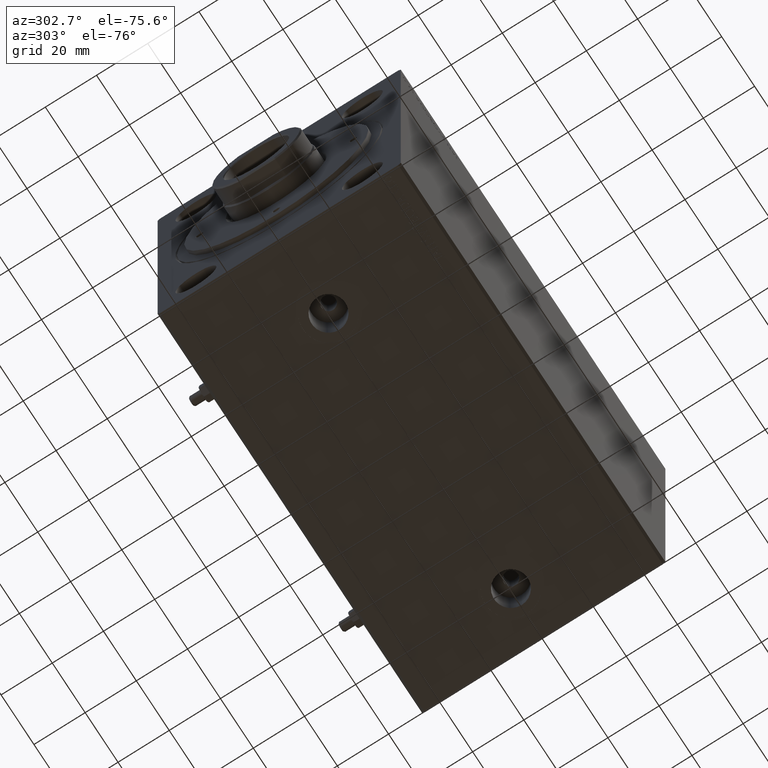
[diagram: clean part render]
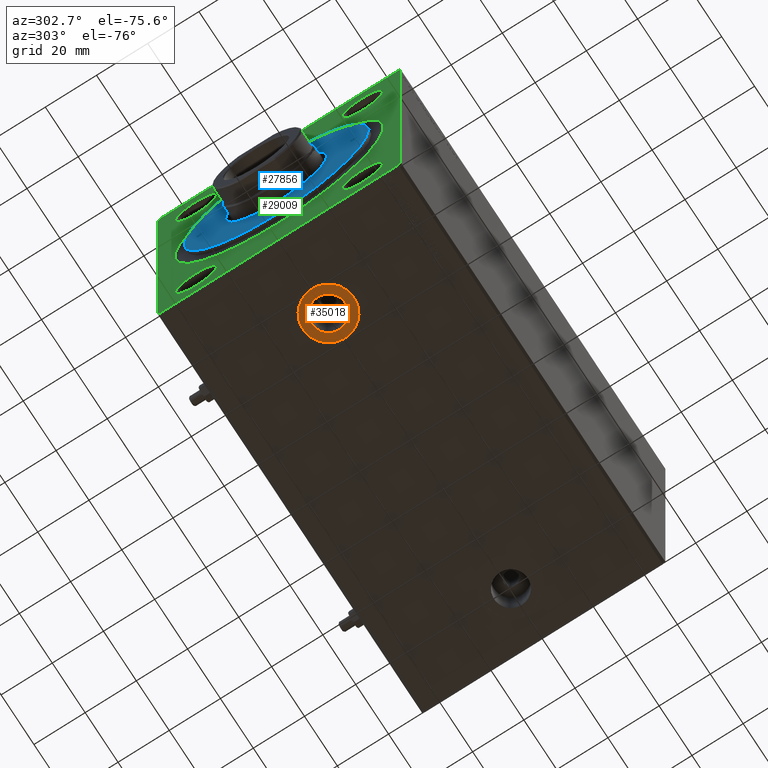
[diagram: same view with three faces highlighted in distinct colors, each labeled with its STEP entity id]
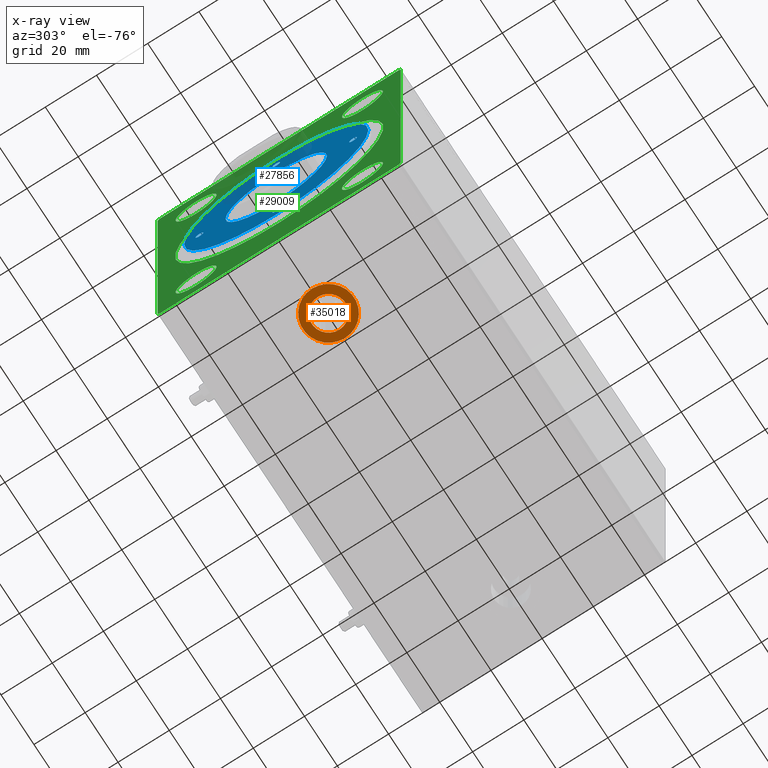
[diagram: x-ray of the same camera — body ghosted, the three highlighted faces saturated]
A machine part, auxiliary view with three faces highlighted in distinct colors.
The next image is the same camera in x-ray (body ghosted, the three faces saturated) — at least one of them is partly hidden behind the body in this view.
Their STEP definitions:

[orange] entity #35018 — the highlighted planar face has unit normal (0, 0, -1).
#243 = EDGE_LOOP ( 'NONE', ( #30362, #29939 ) ) ;
#1184 = EDGE_CURVE ( 'NONE', #19315, #40766, #17042, .T. ) ;
#1366 = DIRECTION ( 'NONE',  ( 0.000000000000000000, 0.000000000000000000, -1.000000000000000000 ) ) ;
#1729 = AXIS2_PLACEMENT_3D ( 'NONE', #23443, #19588, #22999 ) ;
#4216 = CARTESIAN_POINT ( 'NONE',  ( 23.41999999999999460, 3.191269477545414310E-15, -62.39999999999999858 ) ) ;
#4561 = CIRCLE ( 'NONE', #35835, 10.00000000000000178 ) ;
#4780 = CARTESIAN_POINT ( 'NONE',  ( 0.000000000000000000, 0.000000000000000000, -62.39999999999999858 ) ) ;
#8410 = DIRECTION ( 'NONE',  ( -1.000000000000000000, 0.000000000000000000, -0.000000000000000000 ) ) ;
#10978 = CARTESIAN_POINT ( 'NONE',  ( 30.00000000000000000, 3.191269477545414310E-15, -62.39999999999999858 ) ) ;
#11611 = FACE_OUTER_BOUND ( 'NONE', #243, .T. ) ;
#12755 = AXIS2_PLACEMENT_3D ( 'NONE', #29609, #16842, #45073 ) ;
#13468 = ORIENTED_EDGE ( 'NONE', *, *, #1184, .F. ) ;
#14179 = DIRECTION ( 'NONE',  ( 0.000000000000000000, 0.000000000000000000, -1.000000000000000000 ) ) ;
#16836 = DIRECTION ( 'NONE',  ( -1.000000000000000000, 0.000000000000000000, 0.000000000000000000 ) ) ;
#16842 = DIRECTION ( 'NONE',  ( 0.000000000000000000, 0.000000000000000000, -1.000000000000000000 ) ) ;
#17042 = CIRCLE ( 'NONE', #1729, 6.580000000000002736 ) ;
#18718 = AXIS2_PLACEMENT_3D ( 'NONE', #44404, #20497, #16836 ) ;
#19314 = CIRCLE ( 'NONE', #12755, 6.580000000000002736 ) ;
#19315 = VERTEX_POINT ( 'NONE', #43770 ) ;
#19588 = DIRECTION ( 'NONE',  ( 0.000000000000000000, 0.000000000000000000, -1.000000000000000000 ) ) ;
#20497 = DIRECTION ( 'NONE',  ( 0.000000000000000000, 0.000000000000000000, -1.000000000000000000 ) ) ;
#22999 = DIRECTION ( 'NONE',  ( -1.000000000000000000, 0.000000000000000000, 0.000000000000000000 ) ) ;
#23443 = CARTESIAN_POINT ( 'NONE',  ( 30.00000000000000000, 3.191269477545414310E-15, -62.39999999999999858 ) ) ;
#25130 = DIRECTION ( 'NONE',  ( -1.000000000000000000, 0.000000000000000000, 0.000000000000000000 ) ) ;
#26724 = CIRCLE ( 'NONE', #18718, 10.00000000000000178 ) ;
#29577 = EDGE_CURVE ( 'NONE', #43896, #44408, #4561, .T. ) ;
#29609 = CARTESIAN_POINT ( 'NONE',  ( 30.00000000000000000, 3.191269477545414310E-15, -62.39999999999999858 ) ) ;
#29735 = ORIENTED_EDGE ( 'NONE', *, *, #35183, .F. ) ;
#29939 = ORIENTED_EDGE ( 'NONE', *, *, #42974, .T. ) ;
#30362 = ORIENTED_EDGE ( 'NONE', *, *, #29577, .T. ) ;
#32399 = AXIS2_PLACEMENT_3D ( 'NONE', #4780, #1366, #8410 ) ;
#35018 = ADVANCED_FACE ( 'NONE', ( #39627, #11611 ), #35983, .T. ) ;
#35183 = EDGE_CURVE ( 'NONE', #40766, #19315, #19314, .T. ) ;
#35835 = AXIS2_PLACEMENT_3D ( 'NONE', #10978, #14179, #25130 ) ;
#35983 = PLANE ( 'NONE',  #32399 ) ;
#39575 = CARTESIAN_POINT ( 'NONE',  ( 19.99999999999999645, 3.191269477545414310E-15, -62.39999999999999858 ) ) ;
#39627 = FACE_BOUND ( 'NONE', #40523, .T. ) ;
#39865 = CARTESIAN_POINT ( 'NONE',  ( 40.00000000000000000, 4.415916276692767764E-15, -62.39999999999999858 ) ) ;
#40523 = EDGE_LOOP ( 'NONE', ( #29735, #13468 ) ) ;
#40766 = VERTEX_POINT ( 'NONE', #4216 ) ;
#42974 = EDGE_CURVE ( 'NONE', #44408, #43896, #26724, .T. ) ;
#43770 = CARTESIAN_POINT ( 'NONE',  ( 36.57999999999999829, 3.997087071384372957E-15, -62.39999999999999858 ) ) ;
#43896 = VERTEX_POINT ( 'NONE', #39575 ) ;
#44404 = CARTESIAN_POINT ( 'NONE',  ( 30.00000000000000000, 3.191269477545414310E-15, -62.39999999999999858 ) ) ;
#44408 = VERTEX_POINT ( 'NONE', #39865 ) ;
#45073 = DIRECTION ( 'NONE',  ( -1.000000000000000000, 0.000000000000000000, 0.000000000000000000 ) ) ;

[blue] entity #27856 — the highlighted planar face has unit normal (-1, 0, 0).
#464 = ORIENTED_EDGE ( 'NONE', *, *, #30655, .T. ) ;
#476 = DIRECTION ( 'NONE',  ( -0.000000000000000000, -0.000000000000000000, 1.000000000000000000 ) ) ;
#508 = DIRECTION ( 'NONE',  ( 1.000000000000000000, 0.000000000000000000, 0.000000000000000000 ) ) ;
#719 = EDGE_CURVE ( 'NONE', #40693, #11828, #1023, .T. ) ;
#1023 = CIRCLE ( 'NONE', #43948, 36.00000000000000000 ) ;
#1244 = CIRCLE ( 'NONE', #41248, 1.499999999999996891 ) ;
#1642 = AXIS2_PLACEMENT_3D ( 'NONE', #36486, #4840, #5277 ) ;
#2169 = DIRECTION ( 'NONE',  ( 1.000000000000000000, 0.000000000000000000, 0.000000000000000000 ) ) ;
#2742 = CIRCLE ( 'NONE', #29672, 1.499999999999996891 ) ;
#3296 = AXIS2_PLACEMENT_3D ( 'NONE', #30968, #41211, #12963 ) ;
#3419 = ORIENTED_EDGE ( 'NONE', *, *, #15812, .F. ) ;
#3822 = VERTEX_POINT ( 'NONE', #8742 ) ;
#4149 = DIRECTION ( 'NONE',  ( -0.000000000000000000, -0.000000000000000000, -1.000000000000000000 ) ) ;
#4169 = VERTEX_POINT ( 'NONE', #33473 ) ;
#4195 = EDGE_CURVE ( 'NONE', #17726, #4207, #34584, .T. ) ;
#4207 = VERTEX_POINT ( 'NONE', #5888 ) ;
#4340 = ORIENTED_EDGE ( 'NONE', *, *, #21301, .F. ) ;
#4363 = CIRCLE ( 'NONE', #32745, 1.499999999999997780 ) ;
#4489 = EDGE_LOOP ( 'NONE', ( #35942, #464 ) ) ;
#4618 = EDGE_LOOP ( 'NONE', ( #35932, #17393 ) ) ;
#4840 = DIRECTION ( 'NONE',  ( -0.000000000000000000, -0.000000000000000000, 1.000000000000000000 ) ) ;
#5277 = DIRECTION ( 'NONE',  ( 1.000000000000000000, 0.000000000000000000, 0.000000000000000000 ) ) ;
#5888 = CARTESIAN_POINT ( 'NONE',  ( -28.50000000000000000, 0.000000000000000000, 13.99999999999999822 ) ) ;
#7018 = CIRCLE ( 'NONE', #26688, 1.499999999999994449 ) ;
#7320 = DIRECTION ( 'NONE',  ( 1.000000000000000000, 0.000000000000000000, -0.000000000000000000 ) ) ;
#7393 = CARTESIAN_POINT ( 'NONE',  ( 0.000000000000000000, 30.00000000000000000, 13.99999999999999822 ) ) ;
#7538 = DIRECTION ( 'NONE',  ( 0.000000000000000000, 0.000000000000000000, 1.000000000000000000 ) ) ;
#7633 = EDGE_LOOP ( 'NONE', ( #4340, #3419 ) ) ;
#8326 = CARTESIAN_POINT ( 'NONE',  ( 28.50000000000000355, 1.836970198721022785E-16, 13.99999999999999822 ) ) ;
#8742 = CARTESIAN_POINT ( 'NONE',  ( -1.499999999999996891, -30.00000000000000000, 13.99999999999999822 ) ) ;
#8942 = DIRECTION ( 'NONE',  ( -0.000000000000000000, -0.000000000000000000, -1.000000000000000000 ) ) ;
#10314 = VERTEX_POINT ( 'NONE', #31206 ) ;
#11160 = CIRCLE ( 'NONE', #22815, 36.00000000000000000 ) ;
#11560 = CARTESIAN_POINT ( 'NONE',  ( 0.000000000000000000, 30.00000000000000000, 13.99999999999999822 ) ) ;
#11565 = EDGE_CURVE ( 'NONE', #4207, #17726, #4363, .T. ) ;
#11776 = DIRECTION ( 'NONE',  ( 1.000000000000000000, 0.000000000000000000, 0.000000000000000000 ) ) ;
#11828 = VERTEX_POINT ( 'NONE', #21174 ) ;
#12963 = DIRECTION ( 'NONE',  ( 1.000000000000000000, 0.000000000000000000, 0.000000000000000000 ) ) ;
#13935 = FACE_OUTER_BOUND ( 'NONE', #4489, .T. ) ;
#13949 = CARTESIAN_POINT ( 'NONE',  ( 0.000000000000000000, -30.00000000000000000, 13.99999999999999822 ) ) ;
#14177 = DIRECTION ( 'NONE',  ( -0.000000000000000000, -0.000000000000000000, 1.000000000000000000 ) ) ;
#14242 = ORIENTED_EDGE ( 'NONE', *, *, #26611, .F. ) ;
#14633 = CARTESIAN_POINT ( 'NONE',  ( 19.79999999999997229, 0.000000000000000000, 13.99999999999999822 ) ) ;
#15282 = CARTESIAN_POINT ( 'NONE',  ( -1.499999999999996891, 30.00000000000000000, 13.99999999999999822 ) ) ;
#15812 = EDGE_CURVE ( 'NONE', #3822, #24687, #40213, .T. ) ;
#16004 = EDGE_CURVE ( 'NONE', #17060, #4169, #41681, .T. ) ;
#16689 = EDGE_CURVE ( 'NONE', #21499, #10314, #18442, .T. ) ;
#16783 = CARTESIAN_POINT ( 'NONE',  ( 1.499999999999996891, -30.00000000000000000, 13.99999999999999822 ) ) ;
#17060 = VERTEX_POINT ( 'NONE', #15282 ) ;
#17373 = PLANE ( 'NONE',  #25645 ) ;
#17393 = ORIENTED_EDGE ( 'NONE', *, *, #16004, .F. ) ;
#17595 = CARTESIAN_POINT ( 'NONE',  ( 0.000000000000000000, 0.000000000000000000, 13.99999999999999822 ) ) ;
#17726 = VERTEX_POINT ( 'NONE', #36344 ) ;
#18442 = CIRCLE ( 'NONE', #27896, 19.79999999999997229 ) ;
#18596 = DIRECTION ( 'NONE',  ( -0.000000000000000000, -0.000000000000000000, 1.000000000000000000 ) ) ;
#19037 = CARTESIAN_POINT ( 'NONE',  ( 30.00000000000000000, 0.000000000000000000, 13.99999999999999822 ) ) ;
#19496 = ORIENTED_EDGE ( 'NONE', *, *, #42129, .F. ) ;
#20136 = CIRCLE ( 'NONE', #33212, 19.79999999999997229 ) ;
#20958 = EDGE_LOOP ( 'NONE', ( #19496, #14242 ) ) ;
#21174 = CARTESIAN_POINT ( 'NONE',  ( 36.00000000000000000, 4.408728476930470856E-15, 13.99999999999999822 ) ) ;
#21301 = EDGE_CURVE ( 'NONE', #24687, #3822, #2742, .T. ) ;
#21499 = VERTEX_POINT ( 'NONE', #14633 ) ;
#22099 = DIRECTION ( 'NONE',  ( -0.000000000000000000, -0.000000000000000000, 1.000000000000000000 ) ) ;
#22214 = ORIENTED_EDGE ( 'NONE', *, *, #4195, .F. ) ;
#22316 = DIRECTION ( 'NONE',  ( 1.000000000000000000, 0.000000000000000000, 0.000000000000000000 ) ) ;
#22651 = DIRECTION ( 'NONE',  ( 0.000000000000000000, 0.000000000000000000, 1.000000000000000000 ) ) ;
#22815 = AXIS2_PLACEMENT_3D ( 'NONE', #44540, #34067, #2169 ) ;
#24210 = FACE_BOUND ( 'NONE', #7633, .T. ) ;
#24289 = DIRECTION ( 'NONE',  ( -0.000000000000000000, -0.000000000000000000, 1.000000000000000000 ) ) ;
#24638 = CARTESIAN_POINT ( 'NONE',  ( -30.00000000000000000, 0.000000000000000000, 13.99999999999999822 ) ) ;
#24687 = VERTEX_POINT ( 'NONE', #16783 ) ;
#24880 = FACE_BOUND ( 'NONE', #26162, .T. ) ;
#25645 = AXIS2_PLACEMENT_3D ( 'NONE', #17595, #7538, #7320 ) ;
#25831 = DIRECTION ( 'NONE',  ( 1.000000000000000000, 0.000000000000000000, 0.000000000000000000 ) ) ;
#26162 = EDGE_LOOP ( 'NONE', ( #42681, #30761 ) ) ;
#26611 = EDGE_CURVE ( 'NONE', #41450, #41428, #34890, .T. ) ;
#26688 = AXIS2_PLACEMENT_3D ( 'NONE', #39611, #22099, #22316 ) ;
#27856 = ADVANCED_FACE ( 'NONE', ( #31056, #44940, #38760, #24210, #24880, #13935 ), #17373, .T. ) ;
#27896 = AXIS2_PLACEMENT_3D ( 'NONE', #29464, #8942, #25831 ) ;
#29464 = CARTESIAN_POINT ( 'NONE',  ( 0.000000000000000000, 0.000000000000000000, 13.99999999999999822 ) ) ;
#29530 = CARTESIAN_POINT ( 'NONE',  ( 31.49999999999999289, 0.000000000000000000, 13.99999999999999822 ) ) ;
#29672 = AXIS2_PLACEMENT_3D ( 'NONE', #13949, #14177, #508 ) ;
#30655 = EDGE_CURVE ( 'NONE', #11828, #40693, #11160, .T. ) ;
#30761 = ORIENTED_EDGE ( 'NONE', *, *, #41861, .T. ) ;
#30968 = CARTESIAN_POINT ( 'NONE',  ( -30.00000000000000000, 0.000000000000000000, 13.99999999999999822 ) ) ;
#31056 = FACE_BOUND ( 'NONE', #33535, .T. ) ;
#31206 = CARTESIAN_POINT ( 'NONE',  ( -19.79999999999997229, 2.424800662311756249E-15, 13.99999999999999822 ) ) ;
#31351 = DIRECTION ( 'NONE',  ( 1.000000000000000000, 0.000000000000000000, 0.000000000000000000 ) ) ;
#31835 = CARTESIAN_POINT ( 'NONE',  ( 0.000000000000000000, 0.000000000000000000, 13.99999999999999822 ) ) ;
#32745 = AXIS2_PLACEMENT_3D ( 'NONE', #24638, #476, #41714 ) ;
#33212 = AXIS2_PLACEMENT_3D ( 'NONE', #35354, #4149, #41524 ) ;
#33473 = CARTESIAN_POINT ( 'NONE',  ( 1.499999999999996891, 30.00000000000000000, 13.99999999999999822 ) ) ;
#33535 = EDGE_LOOP ( 'NONE', ( #44968, #22214 ) ) ;
#34067 = DIRECTION ( 'NONE',  ( 0.000000000000000000, 0.000000000000000000, 1.000000000000000000 ) ) ;
#34584 = CIRCLE ( 'NONE', #3296, 1.499999999999997780 ) ;
#34890 = CIRCLE ( 'NONE', #40722, 1.499999999999994449 ) ;
#35354 = CARTESIAN_POINT ( 'NONE',  ( 0.000000000000000000, 0.000000000000000000, 13.99999999999999822 ) ) ;
#35932 = ORIENTED_EDGE ( 'NONE', *, *, #43421, .F. ) ;
#35942 = ORIENTED_EDGE ( 'NONE', *, *, #719, .T. ) ;
#36344 = CARTESIAN_POINT ( 'NONE',  ( -31.50000000000000000, 1.836970198721022785E-16, 13.99999999999999822 ) ) ;
#36486 = CARTESIAN_POINT ( 'NONE',  ( 0.000000000000000000, -30.00000000000000000, 13.99999999999999822 ) ) ;
#37505 = CARTESIAN_POINT ( 'NONE',  ( -36.00000000000000000, 0.000000000000000000, 13.99999999999999822 ) ) ;
#38681 = DIRECTION ( 'NONE',  ( -0.000000000000000000, -0.000000000000000000, 1.000000000000000000 ) ) ;
#38751 = AXIS2_PLACEMENT_3D ( 'NONE', #11560, #38681, #11776 ) ;
#38760 = FACE_BOUND ( 'NONE', #20958, .T. ) ;
#39309 = DIRECTION ( 'NONE',  ( 1.000000000000000000, 0.000000000000000000, 0.000000000000000000 ) ) ;
#39611 = CARTESIAN_POINT ( 'NONE',  ( 30.00000000000000000, 0.000000000000000000, 13.99999999999999822 ) ) ;
#39955 = DIRECTION ( 'NONE',  ( 1.000000000000000000, 0.000000000000000000, 0.000000000000000000 ) ) ;
#40213 = CIRCLE ( 'NONE', #1642, 1.499999999999996891 ) ;
#40693 = VERTEX_POINT ( 'NONE', #37505 ) ;
#40722 = AXIS2_PLACEMENT_3D ( 'NONE', #19037, #18596, #39309 ) ;
#41211 = DIRECTION ( 'NONE',  ( -0.000000000000000000, -0.000000000000000000, 1.000000000000000000 ) ) ;
#41248 = AXIS2_PLACEMENT_3D ( 'NONE', #7393, #24289, #31351 ) ;
#41428 = VERTEX_POINT ( 'NONE', #29530 ) ;
#41450 = VERTEX_POINT ( 'NONE', #8326 ) ;
#41524 = DIRECTION ( 'NONE',  ( 1.000000000000000000, 0.000000000000000000, 0.000000000000000000 ) ) ;
#41681 = CIRCLE ( 'NONE', #38751, 1.499999999999996891 ) ;
#41714 = DIRECTION ( 'NONE',  ( 1.000000000000000000, 0.000000000000000000, 0.000000000000000000 ) ) ;
#41861 = EDGE_CURVE ( 'NONE', #10314, #21499, #20136, .T. ) ;
#42129 = EDGE_CURVE ( 'NONE', #41428, #41450, #7018, .T. ) ;
#42681 = ORIENTED_EDGE ( 'NONE', *, *, #16689, .T. ) ;
#43421 = EDGE_CURVE ( 'NONE', #4169, #17060, #1244, .T. ) ;
#43948 = AXIS2_PLACEMENT_3D ( 'NONE', #31835, #22651, #39955 ) ;
#44540 = CARTESIAN_POINT ( 'NONE',  ( 0.000000000000000000, 0.000000000000000000, 13.99999999999999822 ) ) ;
#44940 = FACE_BOUND ( 'NONE', #4618, .T. ) ;
#44968 = ORIENTED_EDGE ( 'NONE', *, *, #11565, .F. ) ;

[green] entity #29009 — the highlighted planar face has unit normal (1, 0, 0).
#26 = EDGE_CURVE ( 'NONE', #34057, #42063, #42561, .T. ) ;
#166 = CIRCLE ( 'NONE', #26395, 40.70000000000003837 ) ;
#219 = FACE_BOUND ( 'NONE', #4784, .T. ) ;
#623 = CIRCLE ( 'NONE', #15907, 8.000000000000000000 ) ;
#839 = CARTESIAN_POINT ( 'NONE',  ( 4.898587196589409870E-16, 32.50000000000000000, -39.50000000000000711 ) ) ;
#1777 = VERTEX_POINT ( 'NONE', #42715 ) ;
#2209 = CARTESIAN_POINT ( 'NONE',  ( 4.898587196589409870E-16, 32.50000000000000000, 47.50000000000000000 ) ) ;
#3694 = CARTESIAN_POINT ( 'NONE',  ( 4.898587196589409870E-16, 32.50000000000000000, -47.50000000000000000 ) ) ;
#4247 = DIRECTION ( 'NONE',  ( 0.000000000000000000, -1.000000000000000000, -7.461176240760460157E-17 ) ) ;
#4403 = ORIENTED_EDGE ( 'NONE', *, *, #29481, .F. ) ;
#4777 = ORIENTED_EDGE ( 'NONE', *, *, #27728, .T. ) ;
#4784 = EDGE_LOOP ( 'NONE', ( #19265, #27011 ) ) ;
#5104 = CARTESIAN_POINT ( 'NONE',  ( 0.000000000000000000, 0.000000000000000000, 0.000000000000000000 ) ) ;
#5212 = DIRECTION ( 'NONE',  ( -1.000000000000000000, -0.000000000000000000, -0.000000000000000000 ) ) ;
#5384 = DIRECTION ( 'NONE',  ( -1.000000000000000000, -0.000000000000000000, -0.000000000000000000 ) ) ;
#5414 = DIRECTION ( 'NONE',  ( 0.000000000000000000, 1.000000000000000000, 1.492235248152092278E-16 ) ) ;
#5631 = CARTESIAN_POINT ( 'NONE',  ( 0.000000000000000000, -46.50000000000000000, -62.50000000000001421 ) ) ;
#6027 = CIRCLE ( 'NONE', #31509, 40.70000000000003837 ) ;
#6146 = CARTESIAN_POINT ( 'NONE',  ( 0.000000000000000000, -47.49999999999999289, -61.50000000000001421 ) ) ;
#6345 = VECTOR ( 'NONE', #16417, 1000.000000000000114 ) ;
#7974 = VERTEX_POINT ( 'NONE', #44386 ) ;
#8581 = DIRECTION ( 'NONE',  ( -1.000000000000000000, -0.000000000000000000, -0.000000000000000000 ) ) ;
#8598 = VERTEX_POINT ( 'NONE', #30014 ) ;
#8696 = EDGE_CURVE ( 'NONE', #7974, #15940, #18843, .T. ) ;
#8703 = EDGE_CURVE ( 'NONE', #42063, #34057, #623, .T. ) ;
#8945 = AXIS2_PLACEMENT_3D ( 'NONE', #21429, #17552, #31440 ) ;
#9107 = CIRCLE ( 'NONE', #11997, 7.999999999999992895 ) ;
#9143 = ORIENTED_EDGE ( 'NONE', *, *, #8703, .F. ) ;
#9407 = LINE ( 'NONE', #9634, #30303 ) ;
#9486 = DIRECTION ( 'NONE',  ( 0.000000000000000000, 0.000000000000000000, 1.000000000000000000 ) ) ;
#9634 = CARTESIAN_POINT ( 'NONE',  ( 0.000000000000000000, -47.50000000000001421, 61.49999999999997868 ) ) ;
#9962 = LINE ( 'NONE', #23879, #35904 ) ;
#10145 = EDGE_LOOP ( 'NONE', ( #9143, #35415 ) ) ;
#10458 = ORIENTED_EDGE ( 'NONE', *, *, #20130, .F. ) ;
#10696 = FACE_OUTER_BOUND ( 'NONE', #14426, .T. ) ;
#10915 = FACE_BOUND ( 'NONE', #36133, .T. ) ;
#11997 = AXIS2_PLACEMENT_3D ( 'NONE', #36421, #5212, #33015 ) ;
#12005 = CARTESIAN_POINT ( 'NONE',  ( 4.898587196589409870E-16, -32.50000000000000000, -47.50000000000000711 ) ) ;
#12199 = CARTESIAN_POINT ( 'NONE',  ( 4.898587196589409870E-16, -32.50000000000000000, 39.50000000000000711 ) ) ;
#12278 = EDGE_LOOP ( 'NONE', ( #29506, #4403 ) ) ;
#12335 = ORIENTED_EDGE ( 'NONE', *, *, #35179, .F. ) ;
#12386 = VERTEX_POINT ( 'NONE', #44024 ) ;
#12591 = CIRCLE ( 'NONE', #18436, 7.999999999999992895 ) ;
#12802 = CARTESIAN_POINT ( 'NONE',  ( 4.898587196589409870E-16, 32.50000000000000000, 39.50000000000000711 ) ) ;
#13511 = DIRECTION ( 'NONE',  ( -1.000000000000000000, -0.000000000000000000, -0.000000000000000000 ) ) ;
#13513 = DIRECTION ( 'NONE',  ( -1.000000000000000000, -0.000000000000000000, -0.000000000000000000 ) ) ;
#13715 = DIRECTION ( 'NONE',  ( 0.000000000000000000, -1.128275431529630729E-16, 1.000000000000000000 ) ) ;
#14186 = CIRCLE ( 'NONE', #35284, 7.999999999999992895 ) ;
#14426 = EDGE_LOOP ( 'NONE', ( #38926, #30848, #44655, #16383, #40185, #24859, #40030, #10458 ) ) ;
#14514 = EDGE_CURVE ( 'NONE', #12386, #28956, #21379, .T. ) ;
#15647 = EDGE_CURVE ( 'NONE', #8598, #26725, #6027, .T. ) ;
#15907 = AXIS2_PLACEMENT_3D ( 'NONE', #19774, #34324, #9486 ) ;
#15940 = VERTEX_POINT ( 'NONE', #12802 ) ;
#16383 = ORIENTED_EDGE ( 'NONE', *, *, #17587, .F. ) ;
#16417 = DIRECTION ( 'NONE',  ( 0.000000000000000000, 0.7071067811865451302, -0.7071067811865500152 ) ) ;
#16928 = DIRECTION ( 'NONE',  ( 1.000000000000000000, 0.000000000000000000, 0.000000000000000000 ) ) ;
#17552 = DIRECTION ( 'NONE',  ( 1.000000000000000000, 0.000000000000000000, 0.000000000000000000 ) ) ;
#17587 = EDGE_CURVE ( 'NONE', #23510, #34395, #9962, .T. ) ;
#17608 = DIRECTION ( 'NONE',  ( 0.000000000000000000, 0.000000000000000000, 1.000000000000000000 ) ) ;
#17709 = LINE ( 'NONE', #35452, #20201 ) ;
#18007 = CARTESIAN_POINT ( 'NONE',  ( 0.000000000000000000, 46.50000000000000000, 62.49999999999998579 ) ) ;
#18047 = EDGE_CURVE ( 'NONE', #41490, #20911, #38102, .T. ) ;
#18436 = AXIS2_PLACEMENT_3D ( 'NONE', #20599, #13513, #37436 ) ;
#18729 = LINE ( 'NONE', #43539, #34429 ) ;
#18843 = CIRCLE ( 'NONE', #41382, 7.999999999999992895 ) ;
#19257 = DIRECTION ( 'NONE',  ( 0.000000000000000000, 0.000000000000000000, -1.000000000000000000 ) ) ;
#19265 = ORIENTED_EDGE ( 'NONE', *, *, #35655, .F. ) ;
#19774 = CARTESIAN_POINT ( 'NONE',  ( 4.898587196589409870E-16, -32.50000000000000000, -47.50000000000000711 ) ) ;
#19786 = EDGE_CURVE ( 'NONE', #29598, #23510, #30325, .T. ) ;
#20130 = EDGE_CURVE ( 'NONE', #28956, #33390, #17709, .T. ) ;
#20201 = VECTOR ( 'NONE', #4247, 1000.000000000000000 ) ;
#20363 = CARTESIAN_POINT ( 'NONE',  ( 0.000000000000000000, 0.000000000000000000, 0.000000000000000000 ) ) ;
#20545 = CARTESIAN_POINT ( 'NONE',  ( 4.898587196589409870E-16, -32.50000000000000000, -39.50000000000000711 ) ) ;
#20599 = CARTESIAN_POINT ( 'NONE',  ( 4.898587196589409870E-16, 32.50000000000000000, 47.50000000000000000 ) ) ;
#20911 = VERTEX_POINT ( 'NONE', #12199 ) ;
#21379 = LINE ( 'NONE', #32059, #28556 ) ;
#21395 = EDGE_CURVE ( 'NONE', #39752, #37679, #43475, .T. ) ;
#21429 = CARTESIAN_POINT ( 'NONE',  ( 0.000000000000000000, 0.000000000000000000, 0.000000000000000000 ) ) ;
#21926 = DIRECTION ( 'NONE',  ( 0.000000000000000000, 0.7071067811865574537, 0.7071067811865376918 ) ) ;
#22497 = DIRECTION ( 'NONE',  ( 0.000000000000000000, 0.000000000000000000, 1.000000000000000000 ) ) ;
#23179 = CARTESIAN_POINT ( 'NONE',  ( 4.898587196589409870E-16, 32.50000000000000000, -47.50000000000000000 ) ) ;
#23510 = VERTEX_POINT ( 'NONE', #5631 ) ;
#23609 = CARTESIAN_POINT ( 'NONE',  ( 4.898587196589409870E-16, -32.50000000000000000, 55.49999999999999289 ) ) ;
#23723 = DIRECTION ( 'NONE',  ( 0.000000000000000000, 0.000000000000000000, 1.000000000000000000 ) ) ;
#23879 = CARTESIAN_POINT ( 'NONE',  ( 0.000000000000000000, -46.50000000000000000, -62.50000000000001421 ) ) ;
#24167 = FACE_BOUND ( 'NONE', #27761, .T. ) ;
#24859 = ORIENTED_EDGE ( 'NONE', *, *, #41791, .F. ) ;
#25172 = VECTOR ( 'NONE', #13715, 1000.000000000000000 ) ;
#25706 = CARTESIAN_POINT ( 'NONE',  ( 0.000000000000000000, 47.50000000000001421, -61.50000000000001421 ) ) ;
#26395 = AXIS2_PLACEMENT_3D ( 'NONE', #20363, #16928, #30829 ) ;
#26685 = DIRECTION ( 'NONE',  ( -1.000000000000000000, -0.000000000000000000, -0.000000000000000000 ) ) ;
#26725 = VERTEX_POINT ( 'NONE', #26776 ) ;
#26776 = CARTESIAN_POINT ( 'NONE',  ( 0.000000000000000000, 4.984312472529732047E-15, -40.70000000000003837 ) ) ;
#26823 = DIRECTION ( 'NONE',  ( -1.000000000000000000, -0.000000000000000000, -0.000000000000000000 ) ) ;
#27011 = ORIENTED_EDGE ( 'NONE', *, *, #21395, .F. ) ;
#27042 = DIRECTION ( 'NONE',  ( 0.000000000000000000, 0.000000000000000000, 1.000000000000000000 ) ) ;
#27573 = CARTESIAN_POINT ( 'NONE',  ( 4.898587196589409870E-16, -32.50000000000000000, 47.50000000000000000 ) ) ;
#27728 = EDGE_CURVE ( 'NONE', #26725, #8598, #166, .T. ) ;
#27761 = EDGE_LOOP ( 'NONE', ( #29610, #12335 ) ) ;
#27796 = CARTESIAN_POINT ( 'NONE',  ( 0.000000000000000000, -46.50000000000001421, 62.49999999999997868 ) ) ;
#28556 = VECTOR ( 'NONE', #31838, 1000.000000000000114 ) ;
#28760 = EDGE_CURVE ( 'NONE', #34395, #44696, #18729, .T. ) ;
#28763 = CARTESIAN_POINT ( 'NONE',  ( 0.000000000000000000, -47.49999999999999289, -61.50000000000001421 ) ) ;
#28956 = VERTEX_POINT ( 'NONE', #18007 ) ;
#29009 = ADVANCED_FACE ( 'NONE', ( #35063, #42139, #219, #24167, #10915, #10696 ), #38714, .F. ) ;
#29024 = EDGE_CURVE ( 'NONE', #33390, #1777, #37826, .T. ) ;
#29481 = EDGE_CURVE ( 'NONE', #15940, #7974, #12591, .T. ) ;
#29506 = ORIENTED_EDGE ( 'NONE', *, *, #8696, .F. ) ;
#29598 = VERTEX_POINT ( 'NONE', #28763 ) ;
#29610 = ORIENTED_EDGE ( 'NONE', *, *, #18047, .F. ) ;
#30014 = CARTESIAN_POINT ( 'NONE',  ( 0.000000000000000000, 0.000000000000000000, 40.70000000000003837 ) ) ;
#30235 = CARTESIAN_POINT ( 'NONE',  ( 0.000000000000000000, 46.50000000000000000, -62.50000000000000000 ) ) ;
#30303 = VECTOR ( 'NONE', #41305, 1000.000000000000000 ) ;
#30325 = LINE ( 'NONE', #6146, #6345 ) ;
#30829 = DIRECTION ( 'NONE',  ( 0.000000000000000000, 0.000000000000000000, -1.000000000000000000 ) ) ;
#30848 = ORIENTED_EDGE ( 'NONE', *, *, #36225, .F. ) ;
#31053 = LINE ( 'NONE', #38989, #25172 ) ;
#31122 = CARTESIAN_POINT ( 'NONE',  ( 4.898587196589409870E-16, 32.50000000000000000, -55.49999999999999289 ) ) ;
#31440 = DIRECTION ( 'NONE',  ( 0.000000000000000000, 0.000000000000000000, -1.000000000000000000 ) ) ;
#31509 = AXIS2_PLACEMENT_3D ( 'NONE', #5104, #36768, #19257 ) ;
#31838 = DIRECTION ( 'NONE',  ( 0.000000000000000000, -0.7071067811865474617, 0.7071067811865474617 ) ) ;
#32059 = CARTESIAN_POINT ( 'NONE',  ( 0.000000000000000000, 47.50000000000000000, 61.49999999999998579 ) ) ;
#33015 = DIRECTION ( 'NONE',  ( 0.000000000000000000, 0.000000000000000000, 1.000000000000000000 ) ) ;
#33390 = VERTEX_POINT ( 'NONE', #41142 ) ;
#33751 = AXIS2_PLACEMENT_3D ( 'NONE', #27573, #26685, #23723 ) ;
#34057 = VERTEX_POINT ( 'NONE', #41933 ) ;
#34324 = DIRECTION ( 'NONE',  ( -1.000000000000000000, -0.000000000000000000, -0.000000000000000000 ) ) ;
#34395 = VERTEX_POINT ( 'NONE', #30235 ) ;
#34412 = DIRECTION ( 'NONE',  ( 0.000000000000000000, -0.7071067811865474617, -0.7071067811865474617 ) ) ;
#34429 = VECTOR ( 'NONE', #21926, 999.9999999999998863 ) ;
#34558 = AXIS2_PLACEMENT_3D ( 'NONE', #12005, #8581, #40255 ) ;
#34761 = AXIS2_PLACEMENT_3D ( 'NONE', #3694, #13511, #17608 ) ;
#35063 = FACE_BOUND ( 'NONE', #12278, .T. ) ;
#35179 = EDGE_CURVE ( 'NONE', #20911, #41490, #9107, .T. ) ;
#35284 = AXIS2_PLACEMENT_3D ( 'NONE', #23179, #5384, #22497 ) ;
#35415 = ORIENTED_EDGE ( 'NONE', *, *, #26, .F. ) ;
#35452 = CARTESIAN_POINT ( 'NONE',  ( 0.000000000000000000, 46.50000000000000000, 62.49999999999998579 ) ) ;
#35655 = EDGE_CURVE ( 'NONE', #37679, #39752, #14186, .T. ) ;
#35904 = VECTOR ( 'NONE', #5414, 1000.000000000000000 ) ;
#36133 = EDGE_LOOP ( 'NONE', ( #37001, #4777 ) ) ;
#36225 = EDGE_CURVE ( 'NONE', #44696, #12386, #31053, .T. ) ;
#36421 = CARTESIAN_POINT ( 'NONE',  ( 4.898587196589409870E-16, -32.50000000000000000, 47.50000000000000000 ) ) ;
#36768 = DIRECTION ( 'NONE',  ( 1.000000000000000000, 0.000000000000000000, 0.000000000000000000 ) ) ;
#37001 = ORIENTED_EDGE ( 'NONE', *, *, #15647, .T. ) ;
#37307 = VECTOR ( 'NONE', #34412, 1000.000000000000114 ) ;
#37436 = DIRECTION ( 'NONE',  ( 0.000000000000000000, 0.000000000000000000, 1.000000000000000000 ) ) ;
#37679 = VERTEX_POINT ( 'NONE', #839 ) ;
#37826 = LINE ( 'NONE', #27796, #37307 ) ;
#38102 = CIRCLE ( 'NONE', #33751, 7.999999999999992895 ) ;
#38714 = PLANE ( 'NONE',  #8945 ) ;
#38926 = ORIENTED_EDGE ( 'NONE', *, *, #14514, .F. ) ;
#38989 = CARTESIAN_POINT ( 'NONE',  ( 0.000000000000000000, 47.50000000000001421, -61.50000000000001421 ) ) ;
#39752 = VERTEX_POINT ( 'NONE', #31122 ) ;
#40030 = ORIENTED_EDGE ( 'NONE', *, *, #29024, .F. ) ;
#40185 = ORIENTED_EDGE ( 'NONE', *, *, #19786, .F. ) ;
#40255 = DIRECTION ( 'NONE',  ( 0.000000000000000000, 0.000000000000000000, 1.000000000000000000 ) ) ;
#41142 = CARTESIAN_POINT ( 'NONE',  ( 0.000000000000000000, -46.50000000000001421, 62.49999999999997868 ) ) ;
#41305 = DIRECTION ( 'NONE',  ( 0.000000000000000000, 1.692413147294445970E-16, -1.000000000000000000 ) ) ;
#41382 = AXIS2_PLACEMENT_3D ( 'NONE', #2209, #26823, #27042 ) ;
#41490 = VERTEX_POINT ( 'NONE', #23609 ) ;
#41791 = EDGE_CURVE ( 'NONE', #1777, #29598, #9407, .T. ) ;
#41933 = CARTESIAN_POINT ( 'NONE',  ( 4.898587196589409870E-16, -32.50000000000000000, -55.50000000000000711 ) ) ;
#42063 = VERTEX_POINT ( 'NONE', #20545 ) ;
#42139 = FACE_BOUND ( 'NONE', #10145, .T. ) ;
#42561 = CIRCLE ( 'NONE', #34558, 8.000000000000000000 ) ;
#42715 = CARTESIAN_POINT ( 'NONE',  ( 0.000000000000000000, -47.50000000000001421, 61.49999999999997868 ) ) ;
#43475 = CIRCLE ( 'NONE', #34761, 7.999999999999992895 ) ;
#43539 = CARTESIAN_POINT ( 'NONE',  ( 0.000000000000000000, 46.50000000000000000, -62.50000000000000000 ) ) ;
#44024 = CARTESIAN_POINT ( 'NONE',  ( 0.000000000000000000, 47.50000000000000000, 61.49999999999998579 ) ) ;
#44386 = CARTESIAN_POINT ( 'NONE',  ( 4.898587196589409870E-16, 32.50000000000000000, 55.49999999999999289 ) ) ;
#44655 = ORIENTED_EDGE ( 'NONE', *, *, #28760, .F. ) ;
#44696 = VERTEX_POINT ( 'NONE', #25706 ) ;